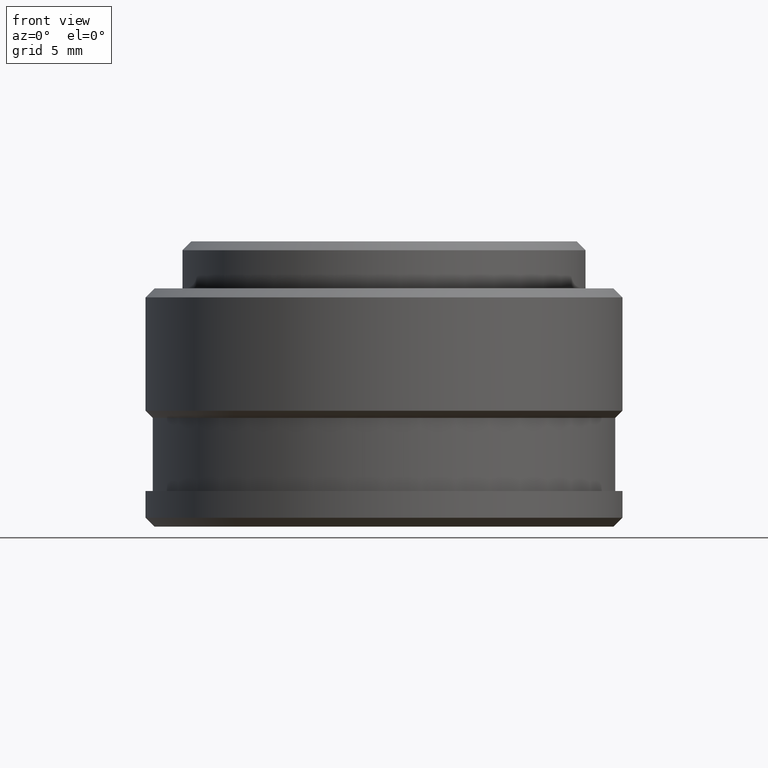
[diagram: clean part render]
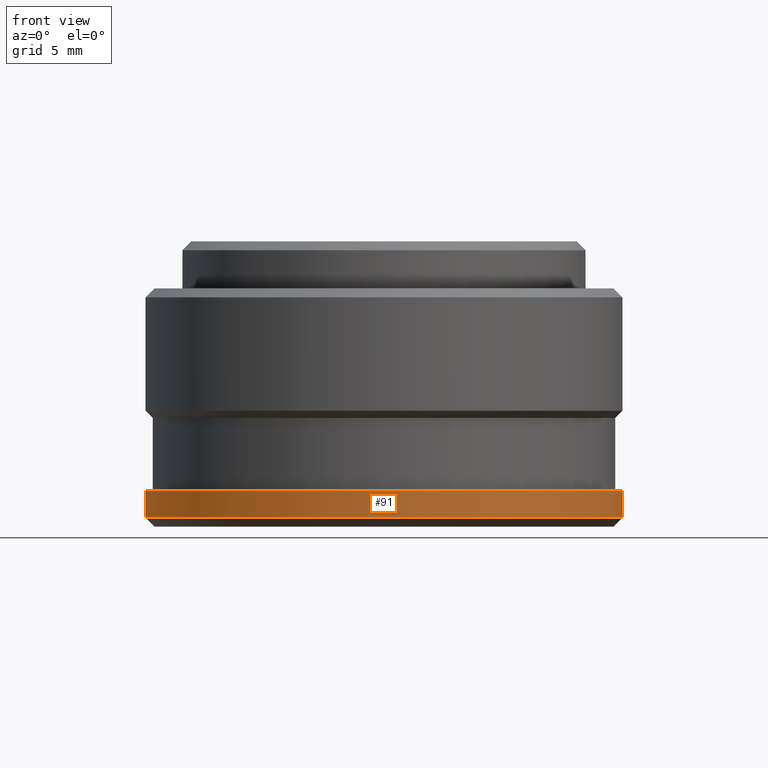
[diagram: same view with one face highlighted and labeled with its STEP entity id]
A machine part, front view. The second image highlights one B-rep face of the part: STEP entity #91.
In plain terms, the highlighted cylindrical surface (partial cylindrical patch) has radius 13.37 mm, axis along (-0, -0, -1).
Its self-contained STEP definition (entity closure, byte-faithful):
#29 = CARTESIAN_POINT ( 'NONE',  ( 13.37000000000000100, 1.637352770460011400E-015, 2.000000000000000000 ) ) ;
#39 = ORIENTED_EDGE ( 'NONE', *, *, #146, .F. ) ;
#64 = DIRECTION ( 'NONE',  ( 1.000000000000000000, 0.0000000000000000000, 0.0000000000000000000 ) ) ;
#67 = ORIENTED_EDGE ( 'NONE', *, *, #323, .F. ) ;
#86 = LINE ( 'NONE', #538, #203 ) ;
#91 = ADVANCED_FACE ( 'NONE', ( #455 ), #547, .T. ) ;
#100 = DIRECTION ( 'NONE',  ( -0.0000000000000000000, -0.0000000000000000000, -1.000000000000000000 ) ) ;
#109 = CARTESIAN_POINT ( 'NONE',  ( 0.0000000000000000000, 0.0000000000000000000, 2.000000000000000000 ) ) ;
#114 = DIRECTION ( 'NONE',  ( -0.0000000000000000000, -0.0000000000000000000, 1.000000000000000000 ) ) ;
#132 = AXIS2_PLACEMENT_3D ( 'NONE', #367, #100, #461 ) ;
#146 = EDGE_CURVE ( 'NONE', #347, #491, #185, .T. ) ;
#148 = DIRECTION ( 'NONE',  ( 0.0000000000000000000, 0.0000000000000000000, 1.000000000000000000 ) ) ;
#185 = LINE ( 'NONE', #550, #288 ) ;
#203 = VECTOR ( 'NONE', #261, 1000.000000000000000 ) ;
#213 = EDGE_LOOP ( 'NONE', ( #39, #67, #242, #473 ) ) ;
#235 = EDGE_CURVE ( 'NONE', #503, #556, #86, .T. ) ;
#242 = ORIENTED_EDGE ( 'NONE', *, *, #235, .T. ) ;
#261 = DIRECTION ( 'NONE',  ( -0.0000000000000000000, -0.0000000000000000000, -1.000000000000000000 ) ) ;
#275 = CIRCLE ( 'NONE', #569, 13.37000000000000100 ) ;
#288 = VECTOR ( 'NONE', #459, 1000.000000000000000 ) ;
#323 = EDGE_CURVE ( 'NONE', #503, #347, #275, .T. ) ;
#338 = CIRCLE ( 'NONE', #518, 13.37000000000000100 ) ;
#347 = VERTEX_POINT ( 'NONE', #29 ) ;
#367 = CARTESIAN_POINT ( 'NONE',  ( 0.0000000000000000000, 0.0000000000000000000, 2.000000000000000000 ) ) ;
#368 = CARTESIAN_POINT ( 'NONE',  ( -13.37000000000000100, 0.0000000000000000000, 0.5000000000000038900 ) ) ;
#412 = EDGE_CURVE ( 'NONE', #556, #491, #338, .T. ) ;
#424 = DIRECTION ( 'NONE',  ( 1.000000000000000000, 0.0000000000000000000, 0.0000000000000000000 ) ) ;
#455 = FACE_OUTER_BOUND ( 'NONE', #213, .T. ) ;
#459 = DIRECTION ( 'NONE',  ( -0.0000000000000000000, -0.0000000000000000000, -1.000000000000000000 ) ) ;
#461 = DIRECTION ( 'NONE',  ( -1.000000000000000000, 0.0000000000000000000, 0.0000000000000000000 ) ) ;
#465 = CARTESIAN_POINT ( 'NONE',  ( 13.37000000000000100, 1.637352770460011400E-015, 0.5000000000000038900 ) ) ;
#471 = CARTESIAN_POINT ( 'NONE',  ( 0.0000000000000000000, 0.0000000000000000000, 0.5000000000000038900 ) ) ;
#473 = ORIENTED_EDGE ( 'NONE', *, *, #412, .T. ) ;
#478 = CARTESIAN_POINT ( 'NONE',  ( -13.37000000000000100, 0.0000000000000000000, 2.000000000000000000 ) ) ;
#491 = VERTEX_POINT ( 'NONE', #465 ) ;
#503 = VERTEX_POINT ( 'NONE', #478 ) ;
#518 = AXIS2_PLACEMENT_3D ( 'NONE', #471, #114, #424 ) ;
#538 = CARTESIAN_POINT ( 'NONE',  ( -13.37000000000000100, 0.0000000000000000000, 2.000000000000000000 ) ) ;
#547 = CYLINDRICAL_SURFACE ( 'NONE', #132, 13.37000000000000100 ) ;
#550 = CARTESIAN_POINT ( 'NONE',  ( 13.37000000000000100, 1.637352770460011400E-015, 2.000000000000000000 ) ) ;
#556 = VERTEX_POINT ( 'NONE', #368 ) ;
#569 = AXIS2_PLACEMENT_3D ( 'NONE', #109, #148, #64 ) ;